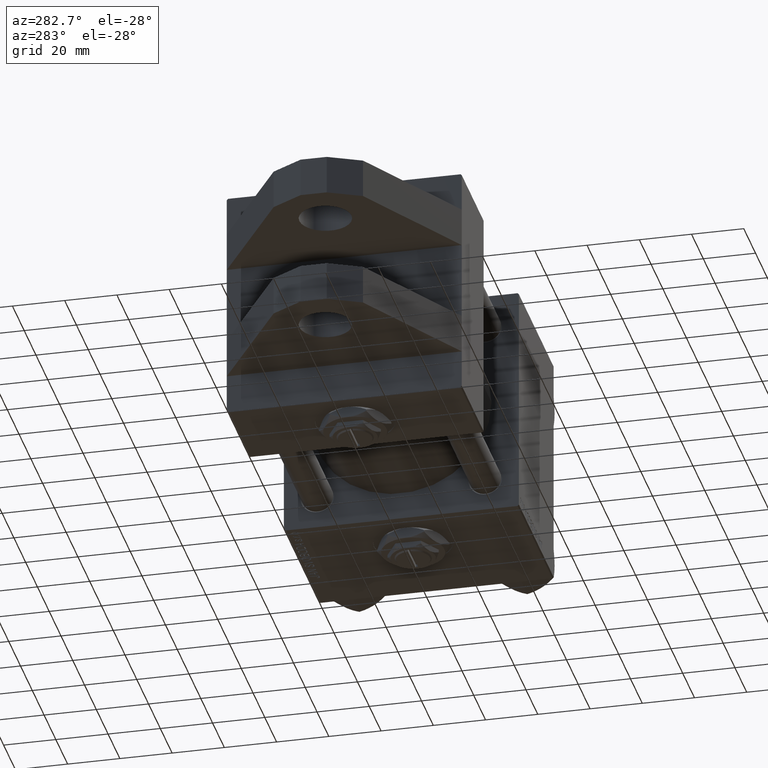
[diagram: clean part render]
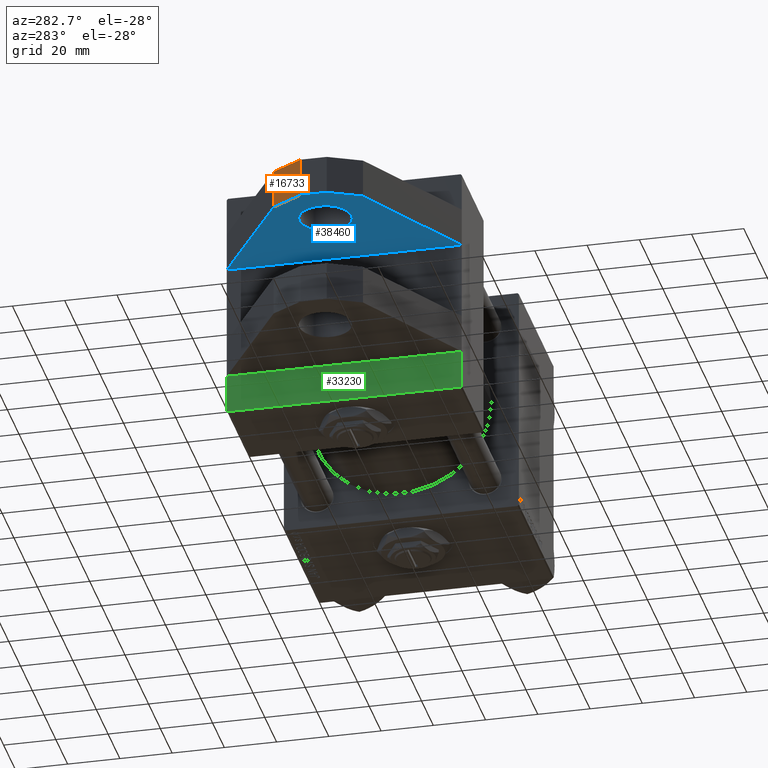
[diagram: same view with three faces highlighted in distinct colors, each labeled with its STEP entity id]
A machine part, auxiliary view with three faces highlighted in distinct colors.
Their STEP definitions:

[orange] entity #16733 — the highlighted planar face has unit normal (-0.8595, 0.5111, 0).
#2997 = LINE ( 'NONE', #47004, #17417 ) ;
#6295 = ORIENTED_EDGE ( 'NONE', *, *, #25927, .T. ) ;
#6994 = EDGE_CURVE ( 'NONE', #23843, #36787, #15007, .T. ) ;
#8856 = ORIENTED_EDGE ( 'NONE', *, *, #6994, .F. ) ;
#8929 = ORIENTED_EDGE ( 'NONE', *, *, #18757, .F. ) ;
#9066 = CARTESIAN_POINT ( 'NONE',  ( -44.91602078046192048, -15.00000000000000000, 16.91288539427591431 ) ) ;
#12862 = FACE_OUTER_BOUND ( 'NONE', #45599, .T. ) ;
#13431 = CARTESIAN_POINT ( 'NONE',  ( -52.00000000000000711, -30.00000000000000000, 5.000000000000000000 ) ) ;
#15007 = LINE ( 'NONE', #42794, #30864 ) ;
#15343 = CARTESIAN_POINT ( 'NONE',  ( -52.00000000000000711, -30.00000000000000000, 5.000000000000000000 ) ) ;
#16733 = ADVANCED_FACE ( 'NONE', ( #12862 ), #41956, .T. ) ;
#17060 = CARTESIAN_POINT ( 'NONE',  ( -52.00000000000000711, -30.00000000000000000, 5.000000000000000000 ) ) ;
#17417 = VECTOR ( 'NONE', #27092, 1000.000000000000000 ) ;
#18757 = EDGE_CURVE ( 'NONE', #34172, #23843, #28153, .T. ) ;
#20048 = DIRECTION ( 'NONE',  ( -0.000000000000000000, 1.000000000000000000, -0.000000000000000000 ) ) ;
#20996 = CARTESIAN_POINT ( 'NONE',  ( -52.00000000000000711, -15.00000000000000000, 5.000000000000000000 ) ) ;
#21224 = CARTESIAN_POINT ( 'NONE',  ( -52.00000000000000711, -30.00000000000000000, 5.000000000000000000 ) ) ;
#21618 = VECTOR ( 'NONE', #37550, 999.9999999999998863 ) ;
#23843 = VERTEX_POINT ( 'NONE', #20996 ) ;
#25927 = EDGE_CURVE ( 'NONE', #34172, #29021, #49323, .T. ) ;
#27092 = DIRECTION ( 'NONE',  ( -0.000000000000000000, 1.000000000000000000, -0.000000000000000000 ) ) ;
#28153 = LINE ( 'NONE', #15343, #34041 ) ;
#29021 = VERTEX_POINT ( 'NONE', #47668 ) ;
#30864 = VECTOR ( 'NONE', #46710, 999.9999999999998863 ) ;
#34041 = VECTOR ( 'NONE', #20048, 1000.000000000000000 ) ;
#34172 = VERTEX_POINT ( 'NONE', #21224 ) ;
#36787 = VERTEX_POINT ( 'NONE', #9066 ) ;
#37550 = DIRECTION ( 'NONE',  ( 0.5111096117992851573, 0.000000000000000000, 0.8595155407125482094 ) ) ;
#40911 = DIRECTION ( 'NONE',  ( 0.5111096117992851573, 0.000000000000000000, 0.8595155407125482094 ) ) ;
#41690 = DIRECTION ( 'NONE',  ( -0.8595155407125482094, 0.000000000000000000, 0.5111096117992851573 ) ) ;
#41956 = PLANE ( 'NONE',  #50714 ) ;
#42794 = CARTESIAN_POINT ( 'NONE',  ( -52.00000000000000711, -15.00000000000000000, 5.000000000000000000 ) ) ;
#45599 = EDGE_LOOP ( 'NONE', ( #8856, #8929, #6295, #50364 ) ) ;
#46710 = DIRECTION ( 'NONE',  ( 0.5111096117992851573, 0.000000000000000000, 0.8595155407125482094 ) ) ;
#47004 = CARTESIAN_POINT ( 'NONE',  ( -44.91602078046192048, -30.00000000000000000, 16.91288539427591431 ) ) ;
#47233 = EDGE_CURVE ( 'NONE', #29021, #36787, #2997, .T. ) ;
#47668 = CARTESIAN_POINT ( 'NONE',  ( -44.91602078046192048, -30.00000000000000000, 16.91288539427591431 ) ) ;
#49323 = LINE ( 'NONE', #13431, #21618 ) ;
#50364 = ORIENTED_EDGE ( 'NONE', *, *, #47233, .T. ) ;
#50714 = AXIS2_PLACEMENT_3D ( 'NONE', #17060, #41690, #40911 ) ;

[blue] entity #38460 — the highlighted planar face has unit normal (0, 0, 1).
#741 = VECTOR ( 'NONE', #28594, 1000.000000000000000 ) ;
#1545 = ORIENTED_EDGE ( 'NONE', *, *, #18009, .F. ) ;
#2255 = EDGE_CURVE ( 'NONE', #48229, #18482, #36226, .T. ) ;
#3318 = DIRECTION ( 'NONE',  ( -0.8595155407125480984, 0.000000000000000000, 0.5111096117992853793 ) ) ;
#3741 = CARTESIAN_POINT ( 'NONE',  ( -32.00000000000000000, -15.00000000000000000, 0.000000000000000000 ) ) ;
#6994 = EDGE_CURVE ( 'NONE', #23843, #36787, #15007, .T. ) ;
#8006 = CARTESIAN_POINT ( 'NONE',  ( -46.14251089227400371, -15.00000000000000000, -17.56142592832800631 ) ) ;
#9066 = CARTESIAN_POINT ( 'NONE',  ( -44.91602078046192048, -15.00000000000000000, 16.91288539427591431 ) ) ;
#10802 = VECTOR ( 'NONE', #3318, 999.9999999999998863 ) ;
#12251 = CIRCLE ( 'NONE', #14771, 10.00000000000000000 ) ;
#12382 = DIRECTION ( 'NONE',  ( -0.4226182617406930020, 0.000000000000000000, 0.9063077870366529343 ) ) ;
#14771 = AXIS2_PLACEMENT_3D ( 'NONE', #3741, #31502, #26809 ) ;
#15007 = LINE ( 'NONE', #42794, #30864 ) ;
#16419 = PLANE ( 'NONE',  #41548 ) ;
#16757 = EDGE_CURVE ( 'NONE', #33388, #42260, #34824, .T. ) ;
#16806 = DIRECTION ( 'NONE',  ( -0.000000000000000000, 1.000000000000000000, -0.000000000000000000 ) ) ;
#17037 = LINE ( 'NONE', #37208, #26925 ) ;
#18009 = EDGE_CURVE ( 'NONE', #42260, #33388, #12251, .T. ) ;
#18482 = VERTEX_POINT ( 'NONE', #32665 ) ;
#19173 = CARTESIAN_POINT ( 'NONE',  ( 0.000000000000000000, -15.00000000000000000, 45.00000000000000000 ) ) ;
#19594 = FACE_OUTER_BOUND ( 'NONE', #48929, .T. ) ;
#20990 = DIRECTION ( 'NONE',  ( 0.000000000000000000, 0.000000000000000000, 1.000000000000000000 ) ) ;
#20996 = CARTESIAN_POINT ( 'NONE',  ( -52.00000000000000711, -15.00000000000000000, 5.000000000000000000 ) ) ;
#21512 = CARTESIAN_POINT ( 'NONE',  ( -52.00000000000000711, -15.00000000000000000, -5.000000000000000000 ) ) ;
#21580 = ORIENTED_EDGE ( 'NONE', *, *, #16757, .F. ) ;
#22459 = LINE ( 'NONE', #35279, #40976 ) ;
#22814 = EDGE_LOOP ( 'NONE', ( #1545, #21580 ) ) ;
#23789 = EDGE_CURVE ( 'NONE', #18482, #23843, #25187, .T. ) ;
#23843 = VERTEX_POINT ( 'NONE', #20996 ) ;
#24240 = LINE ( 'NONE', #8006, #10802 ) ;
#24814 = VERTEX_POINT ( 'NONE', #19173 ) ;
#25187 = LINE ( 'NONE', #21512, #741 ) ;
#25696 = VECTOR ( 'NONE', #12382, 1000.000000000000227 ) ;
#25727 = ORIENTED_EDGE ( 'NONE', *, *, #46021, .T. ) ;
#26193 = CARTESIAN_POINT ( 'NONE',  ( -32.00000000000000000, -15.00000000000000000, -10.00000000000000000 ) ) ;
#26809 = DIRECTION ( 'NONE',  ( 0.000000000000000000, 0.000000000000000000, 1.000000000000000000 ) ) ;
#26925 = VECTOR ( 'NONE', #29349, 1000.000000000000000 ) ;
#27448 = CARTESIAN_POINT ( 'NONE',  ( 0.000000000000000000, -15.00000000000000000, 0.000000000000000000 ) ) ;
#28594 = DIRECTION ( 'NONE',  ( 0.000000000000000000, 0.000000000000000000, 1.000000000000000000 ) ) ;
#29349 = DIRECTION ( 'NONE',  ( 0.000000000000000000, 0.000000000000000000, -1.000000000000000000 ) ) ;
#30210 = CARTESIAN_POINT ( 'NONE',  ( -46.14251089227400371, -15.00000000000000000, -17.56142592832800631 ) ) ;
#30864 = VECTOR ( 'NONE', #46710, 999.9999999999998863 ) ;
#31502 = DIRECTION ( 'NONE',  ( -0.000000000000000000, 1.000000000000000000, -0.000000000000000000 ) ) ;
#32061 = VERTEX_POINT ( 'NONE', #34440 ) ;
#32665 = CARTESIAN_POINT ( 'NONE',  ( -52.00000000000000711, -15.00000000000000000, -5.000000000000000000 ) ) ;
#33388 = VERTEX_POINT ( 'NONE', #26193 ) ;
#34196 = EDGE_CURVE ( 'NONE', #24814, #32061, #17037, .T. ) ;
#34440 = CARTESIAN_POINT ( 'NONE',  ( 0.000000000000000000, -15.00000000000000000, -45.00000000000000000 ) ) ;
#34723 = CARTESIAN_POINT ( 'NONE',  ( -32.00000000000000000, -15.00000000000000000, 10.00000000000000000 ) ) ;
#34824 = CIRCLE ( 'NONE', #45697, 10.00000000000000000 ) ;
#35279 = CARTESIAN_POINT ( 'NONE',  ( -44.91602078046192048, -15.00000000000000000, 16.91288539427591431 ) ) ;
#36226 = LINE ( 'NONE', #39669, #25696 ) ;
#36787 = VERTEX_POINT ( 'NONE', #9066 ) ;
#36805 = ORIENTED_EDGE ( 'NONE', *, *, #50512, .T. ) ;
#37208 = CARTESIAN_POINT ( 'NONE',  ( 0.000000000000000000, -15.00000000000000000, 45.00000000000000000 ) ) ;
#38460 = ADVANCED_FACE ( 'NONE', ( #48371, #19594 ), #16419, .F. ) ;
#39669 = CARTESIAN_POINT ( 'NONE',  ( -52.00000000000000711, -15.00000000000000000, -5.000000000000000000 ) ) ;
#40080 = ORIENTED_EDGE ( 'NONE', *, *, #6994, .T. ) ;
#40976 = VECTOR ( 'NONE', #51004, 1000.000000000000114 ) ;
#41548 = AXIS2_PLACEMENT_3D ( 'NONE', #27448, #48107, #43692 ) ;
#42260 = VERTEX_POINT ( 'NONE', #34723 ) ;
#42794 = CARTESIAN_POINT ( 'NONE',  ( -52.00000000000000711, -15.00000000000000000, 5.000000000000000000 ) ) ;
#43692 = DIRECTION ( 'NONE',  ( 0.000000000000000000, 0.000000000000000000, 1.000000000000000000 ) ) ;
#45601 = CARTESIAN_POINT ( 'NONE',  ( -32.00000000000000000, -15.00000000000000000, 0.000000000000000000 ) ) ;
#45697 = AXIS2_PLACEMENT_3D ( 'NONE', #45601, #16806, #20990 ) ;
#46021 = EDGE_CURVE ( 'NONE', #32061, #48229, #24240, .T. ) ;
#46710 = DIRECTION ( 'NONE',  ( 0.5111096117992851573, 0.000000000000000000, 0.8595155407125482094 ) ) ;
#46743 = ORIENTED_EDGE ( 'NONE', *, *, #34196, .T. ) ;
#47175 = ORIENTED_EDGE ( 'NONE', *, *, #23789, .T. ) ;
#48107 = DIRECTION ( 'NONE',  ( 0.000000000000000000, -1.000000000000000000, 0.000000000000000000 ) ) ;
#48229 = VERTEX_POINT ( 'NONE', #30210 ) ;
#48371 = FACE_BOUND ( 'NONE', #22814, .T. ) ;
#48929 = EDGE_LOOP ( 'NONE', ( #40080, #36805, #46743, #25727, #51078, #47175 ) ) ;
#50512 = EDGE_CURVE ( 'NONE', #36787, #24814, #22459, .T. ) ;
#51004 = DIRECTION ( 'NONE',  ( 0.8478744008358545248, 0.000000000000000000, 0.5301971335335947666 ) ) ;
#51078 = ORIENTED_EDGE ( 'NONE', *, *, #2255, .T. ) ;

[green] entity #33230 — the highlighted planar face has unit normal (-1, 0, -0).
#1776 = DIRECTION ( 'NONE',  ( 0.000000000000000000, -1.000000000000000000, -1.541976423090495387E-16 ) ) ;
#3485 = AXIS2_PLACEMENT_3D ( 'NONE', #39855, #3699, #32478 ) ;
#3699 = DIRECTION ( 'NONE',  ( -1.000000000000000000, 0.000000000000000000, -0.000000000000000000 ) ) ;
#4272 = EDGE_CURVE ( 'NONE', #34438, #48457, #4739, .T. ) ;
#4739 = LINE ( 'NONE', #47978, #18232 ) ;
#4755 = CARTESIAN_POINT ( 'NONE',  ( 0.000000000000000000, 44.74999999999998579, -44.74999999999998579 ) ) ;
#7425 = CARTESIAN_POINT ( 'NONE',  ( 0.000000000000000000, 30.00000000000000355, 45.00000000000001421 ) ) ;
#7449 = VECTOR ( 'NONE', #33013, 1000.000000000000000 ) ;
#7558 = ORIENTED_EDGE ( 'NONE', *, *, #14198, .T. ) ;
#8651 = PLANE ( 'NONE',  #3485 ) ;
#8911 = EDGE_LOOP ( 'NONE', ( #16804, #10491, #49109, #39131, #7558, #13659 ) ) ;
#10476 = VECTOR ( 'NONE', #45607, 1000.000000000000114 ) ;
#10491 = ORIENTED_EDGE ( 'NONE', *, *, #25361, .F. ) ;
#13059 = EDGE_CURVE ( 'NONE', #39707, #24021, #31272, .T. ) ;
#13254 = VECTOR ( 'NONE', #17041, 1000.000000000000114 ) ;
#13659 = ORIENTED_EDGE ( 'NONE', *, *, #4272, .T. ) ;
#14198 = EDGE_CURVE ( 'NONE', #24021, #34438, #40648, .T. ) ;
#16516 = FACE_OUTER_BOUND ( 'NONE', #8911, .T. ) ;
#16798 = DIRECTION ( 'NONE',  ( 0.000000000000000000, -1.000000000000000000, -1.541976423090495633E-16 ) ) ;
#16804 = ORIENTED_EDGE ( 'NONE', *, *, #27963, .F. ) ;
#17041 = DIRECTION ( 'NONE',  ( 0.000000000000000000, 0.7071067811865474617, -0.7071067811865474617 ) ) ;
#17510 = CARTESIAN_POINT ( 'NONE',  ( 0.000000000000000000, 44.49999999999998579, -44.99999999999998579 ) ) ;
#18066 = VERTEX_POINT ( 'NONE', #7425 ) ;
#18232 = VECTOR ( 'NONE', #16798, 1000.000000000000000 ) ;
#20449 = LINE ( 'NONE', #48211, #13254 ) ;
#20745 = VECTOR ( 'NONE', #1776, 1000.000000000000000 ) ;
#23671 = VERTEX_POINT ( 'NONE', #43296 ) ;
#23874 = LINE ( 'NONE', #48990, #7449 ) ;
#24021 = VERTEX_POINT ( 'NONE', #27514 ) ;
#25349 = LINE ( 'NONE', #41337, #20745 ) ;
#25361 = EDGE_CURVE ( 'NONE', #23671, #18066, #25349, .T. ) ;
#27158 = VECTOR ( 'NONE', #43080, 1000.000000000000000 ) ;
#27514 = CARTESIAN_POINT ( 'NONE',  ( 0.000000000000000000, 44.99999999999998579, -44.49999999999995737 ) ) ;
#27963 = EDGE_CURVE ( 'NONE', #18066, #48457, #23874, .T. ) ;
#30512 = CARTESIAN_POINT ( 'NONE',  ( 0.000000000000000000, 44.99999999999998579, 45.00000000000001421 ) ) ;
#31272 = LINE ( 'NONE', #30512, #27158 ) ;
#32478 = DIRECTION ( 'NONE',  ( -0.000000000000000000, 0.000000000000000000, 1.000000000000000000 ) ) ;
#33013 = DIRECTION ( 'NONE',  ( 0.000000000000000000, 0.000000000000000000, -1.000000000000000000 ) ) ;
#33230 = ADVANCED_FACE ( 'NONE', ( #16516 ), #8651, .T. ) ;
#34438 = VERTEX_POINT ( 'NONE', #17510 ) ;
#39131 = ORIENTED_EDGE ( 'NONE', *, *, #13059, .T. ) ;
#39707 = VERTEX_POINT ( 'NONE', #45374 ) ;
#39855 = CARTESIAN_POINT ( 'NONE',  ( 0.000000000000000000, 0.000000000000000000, 0.000000000000000000 ) ) ;
#40648 = LINE ( 'NONE', #4755, #10476 ) ;
#41337 = CARTESIAN_POINT ( 'NONE',  ( 0.000000000000000000, 44.99999999999998579, 45.00000000000001421 ) ) ;
#43080 = DIRECTION ( 'NONE',  ( 0.000000000000000000, 0.000000000000000000, -1.000000000000000000 ) ) ;
#43296 = CARTESIAN_POINT ( 'NONE',  ( 0.000000000000000000, 44.49999999999998579, 45.00000000000001421 ) ) ;
#45374 = CARTESIAN_POINT ( 'NONE',  ( 0.000000000000000000, 44.99999999999998579, 44.50000000000001421 ) ) ;
#45607 = DIRECTION ( 'NONE',  ( -0.000000000000000000, -0.7071067811865474617, -0.7071067811865474617 ) ) ;
#47548 = EDGE_CURVE ( 'NONE', #23671, #39707, #20449, .T. ) ;
#47978 = CARTESIAN_POINT ( 'NONE',  ( 0.000000000000000000, 44.99999999999998579, -44.99999999999998579 ) ) ;
#48211 = CARTESIAN_POINT ( 'NONE',  ( 0.000000000000000000, 44.74999999999999289, 44.74999999999999289 ) ) ;
#48457 = VERTEX_POINT ( 'NONE', #49779 ) ;
#48990 = CARTESIAN_POINT ( 'NONE',  ( 0.000000000000000000, 30.00000000000000000, 45.00000000000000000 ) ) ;
#49109 = ORIENTED_EDGE ( 'NONE', *, *, #47548, .T. ) ;
#49779 = CARTESIAN_POINT ( 'NONE',  ( 0.000000000000000000, 30.00000000000000000, -45.00000000000000000 ) ) ;